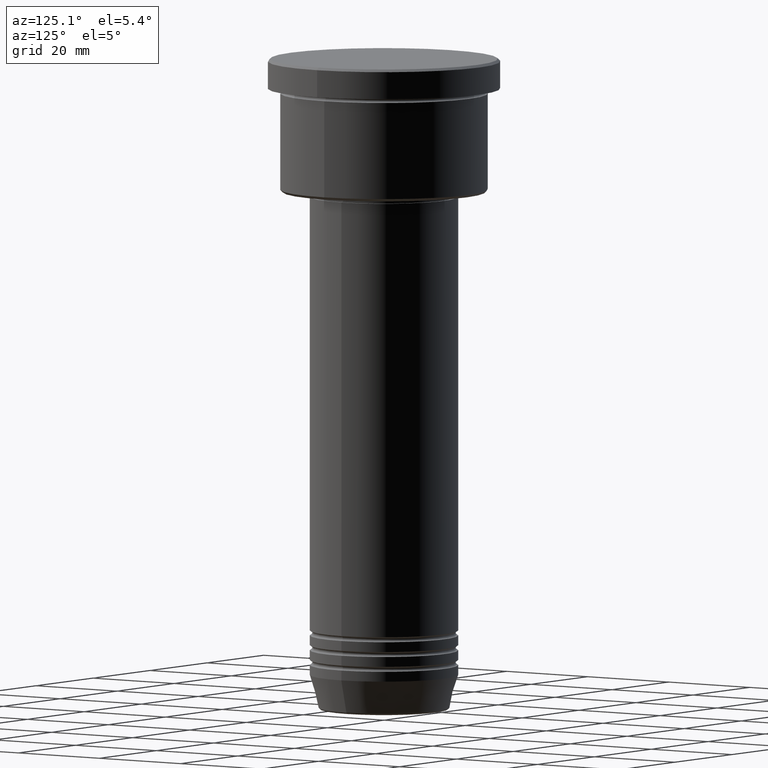
[diagram: clean part render]
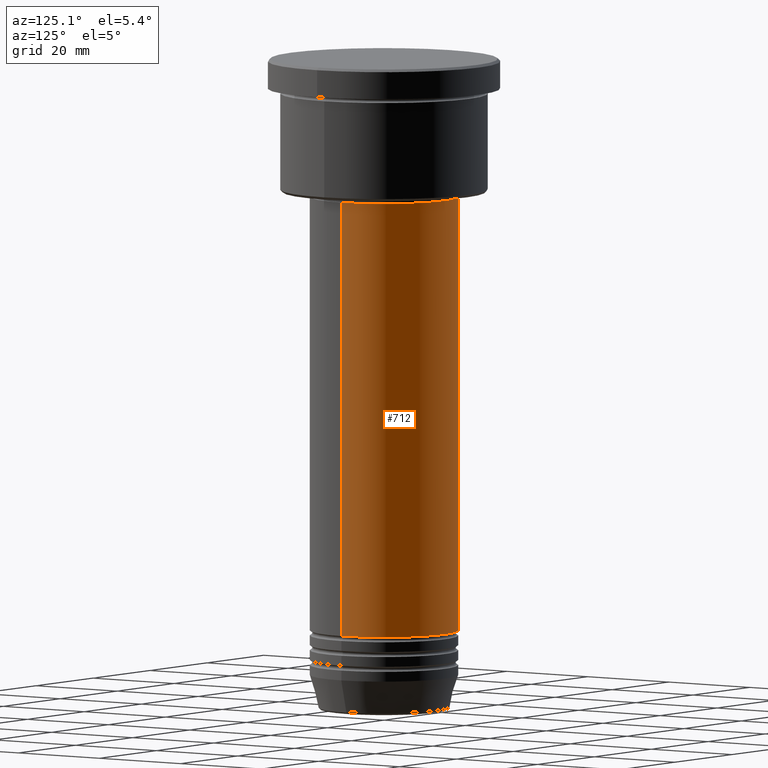
[diagram: same view with one face highlighted and labeled with its STEP entity id]
A machine part, auxiliary view. The second image highlights one B-rep face of the part: STEP entity #712.
In plain terms, the highlighted cylindrical surface (partial cylindrical patch) has radius 15 mm, axis along (-0, -0, 1).
Its self-contained STEP definition (entity closure, byte-faithful):
#16 = CARTESIAN_POINT ( 'NONE',  ( 15.00000000000000000, 0.000000000000000000, 0.000000000000000000 ) ) ;
#18 = AXIS2_PLACEMENT_3D ( 'NONE', #1135, #1093, #743 ) ;
#42 = EDGE_CURVE ( 'NONE', #325, #634, #459, .T. ) ;
#52 = DIRECTION ( 'NONE',  ( -0.000000000000000000, -0.000000000000000000, 1.000000000000000000 ) ) ;
#61 = VECTOR ( 'NONE', #382, 1000.000000000000000 ) ;
#76 = AXIS2_PLACEMENT_3D ( 'NONE', #1117, #52, #409 ) ;
#85 = DIRECTION ( 'NONE',  ( -0.000000000000000000, -0.000000000000000000, 1.000000000000000000 ) ) ;
#119 = EDGE_CURVE ( 'NONE', #673, #325, #579, .T. ) ;
#183 = CARTESIAN_POINT ( 'NONE',  ( 0.000000000000000000, 0.000000000000000000, 0.000000000000000000 ) ) ;
#325 = VERTEX_POINT ( 'NONE', #364 ) ;
#330 = CARTESIAN_POINT ( 'NONE',  ( 15.00000000000000000, 0.000000000000000000, -28.00000000000000355 ) ) ;
#364 = CARTESIAN_POINT ( 'NONE',  ( -15.00000000000000000, 1.836970198721029589E-15, -115.9999999999999574 ) ) ;
#368 = CYLINDRICAL_SURFACE ( 'NONE', #1170, 15.00000000000000000 ) ;
#382 = DIRECTION ( 'NONE',  ( -0.000000000000000000, -0.000000000000000000, 1.000000000000000000 ) ) ;
#388 = CARTESIAN_POINT ( 'NONE',  ( 15.00000000000000000, 0.000000000000000000, -115.9999999999999574 ) ) ;
#409 = DIRECTION ( 'NONE',  ( 1.000000000000000000, 0.000000000000000000, 0.000000000000000000 ) ) ;
#459 = LINE ( 'NONE', #637, #855 ) ;
#475 = ORIENTED_EDGE ( 'NONE', *, *, #119, .T. ) ;
#520 = CIRCLE ( 'NONE', #76, 15.00000000000000000 ) ;
#524 = VERTEX_POINT ( 'NONE', #330 ) ;
#546 = FACE_OUTER_BOUND ( 'NONE', #829, .T. ) ;
#579 = CIRCLE ( 'NONE', #18, 15.00000000000000000 ) ;
#634 = VERTEX_POINT ( 'NONE', #1073 ) ;
#637 = CARTESIAN_POINT ( 'NONE',  ( -15.00000000000000000, 1.836970198721029589E-15, 0.000000000000000000 ) ) ;
#650 = DIRECTION ( 'NONE',  ( 1.000000000000000000, 0.000000000000000000, 0.000000000000000000 ) ) ;
#651 = EDGE_CURVE ( 'NONE', #524, #634, #520, .T. ) ;
#673 = VERTEX_POINT ( 'NONE', #388 ) ;
#712 = ADVANCED_FACE ( 'NONE', ( #546 ), #368, .T. ) ;
#743 = DIRECTION ( 'NONE',  ( 1.000000000000000000, 0.000000000000000000, 0.000000000000000000 ) ) ;
#758 = ORIENTED_EDGE ( 'NONE', *, *, #42, .T. ) ;
#820 = EDGE_CURVE ( 'NONE', #673, #524, #1116, .T. ) ;
#829 = EDGE_LOOP ( 'NONE', ( #475, #758, #1099, #868 ) ) ;
#855 = VECTOR ( 'NONE', #1177, 1000.000000000000000 ) ;
#868 = ORIENTED_EDGE ( 'NONE', *, *, #820, .F. ) ;
#1073 = CARTESIAN_POINT ( 'NONE',  ( -15.00000000000000000, 1.836970198721029589E-15, -28.00000000000000355 ) ) ;
#1093 = DIRECTION ( 'NONE',  ( -0.000000000000000000, -0.000000000000000000, 1.000000000000000000 ) ) ;
#1099 = ORIENTED_EDGE ( 'NONE', *, *, #651, .F. ) ;
#1116 = LINE ( 'NONE', #16, #61 ) ;
#1117 = CARTESIAN_POINT ( 'NONE',  ( 0.000000000000000000, 0.000000000000000000, -28.00000000000000355 ) ) ;
#1135 = CARTESIAN_POINT ( 'NONE',  ( 0.000000000000000000, 0.000000000000000000, -115.9999999999999574 ) ) ;
#1170 = AXIS2_PLACEMENT_3D ( 'NONE', #183, #85, #650 ) ;
#1177 = DIRECTION ( 'NONE',  ( -0.000000000000000000, -0.000000000000000000, 1.000000000000000000 ) ) ;